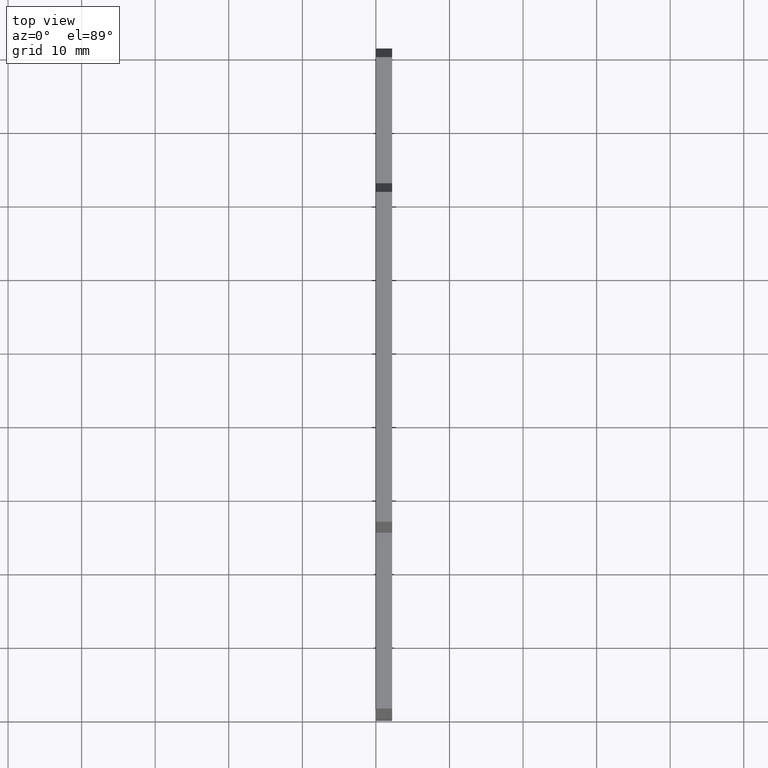
[diagram: clean part render]
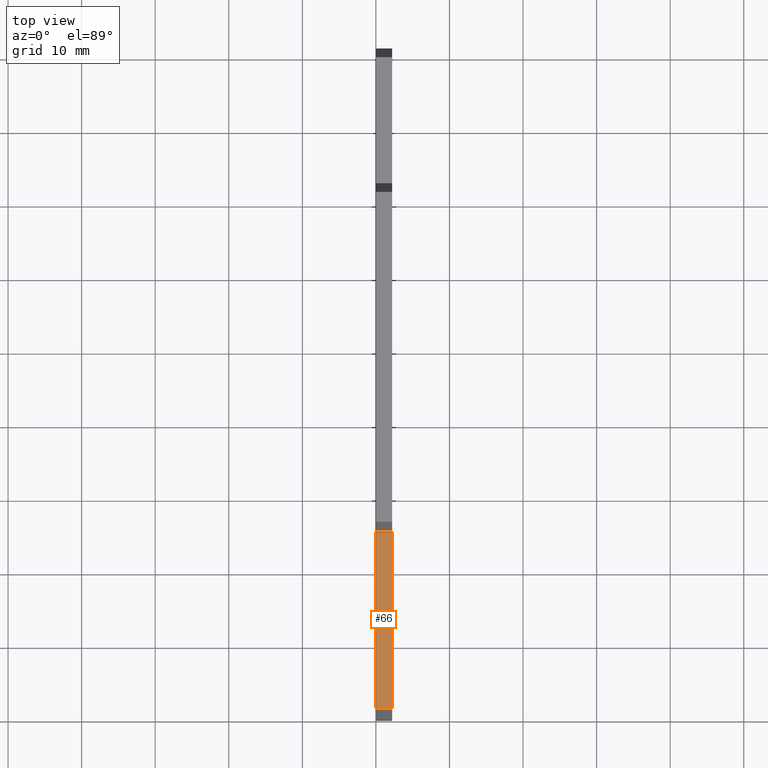
[diagram: same view with one face highlighted and labeled with its STEP entity id]
A machine part, top view. The second image highlights one B-rep face of the part: STEP entity #66.
In plain terms, the highlighted planar face has unit normal (0, -0, 1).
Its self-contained STEP definition (entity closure, byte-faithful):
#66=ADVANCED_FACE('',(#139),#140,.T.);
#139=FACE_OUTER_BOUND('',#216,.T.);
#140=PLANE('',#217);
#216=EDGE_LOOP('',(#332,#333,#334,#335));
#217=AXIS2_PLACEMENT_3D('',#336,#337,#338);
#332=ORIENTED_EDGE('',*,*,#512,.F.);
#333=ORIENTED_EDGE('',*,*,#518,.T.);
#334=ORIENTED_EDGE('',*,*,#519,.F.);
#335=ORIENTED_EDGE('',*,*,#520,.F.);
#336=CARTESIAN_POINT('',(0.0,1.7155528290119,29.0500000000041));
#337=DIRECTION('',(2.46511851528901E-018,-4.85722573273506E-017,1.0));
#338=DIRECTION('',(-5.88252602212242E-013,1.0,4.85722573273521E-017));
#512=EDGE_CURVE('',#619,#617,#621,.T.);
#518=EDGE_CURVE('',#619,#629,#630,.T.);
#519=EDGE_CURVE('',#631,#629,#632,.T.);
#520=EDGE_CURVE('',#617,#631,#633,.T.);
#617=VERTEX_POINT('',#764);
#619=VERTEX_POINT('',#767);
#621=LINE('',#770,#771);
#629=VERTEX_POINT('',#782);
#630=LINE('',#783,#784);
#631=VERTEX_POINT('',#785);
#632=LINE('',#786,#787);
#633=LINE('',#788,#789);
#764=CARTESIAN_POINT('',(0.0,1.296003013423,29.0500000000043));
#767=CARTESIAN_POINT('',(2.2,1.296003013423,29.0500000000043));
#770=CARTESIAN_POINT('',(-48.52,1.296003013423,29.0500000000043));
#771=VECTOR('',#916,1.0);
#782=CARTESIAN_POINT('',(2.2,25.1999994304793,29.0499999999902));
#783=CARTESIAN_POINT('',(2.2,61.6211162538102,29.0499999999688));
#784=VECTOR('',#920,1.0);
#785=CARTESIAN_POINT('',(0.0,25.1999994304793,29.0499999999902));
#786=CARTESIAN_POINT('',(-48.52,25.1999994304793,29.0499999999902));
#787=VECTOR('',#921,1.0);
#788=CARTESIAN_POINT('',(0.0,61.6211162538102,29.0499999999688));
#789=VECTOR('',#922,1.0);
#916=DIRECTION('',(-1.0,-4.7037256739877E-017,2.46511816930322E-018));
#920=DIRECTION('',(-4.70372567398784E-017,1.0,-5.88156992698175E-013));
#921=DIRECTION('',(1.0,4.7037256739877E-017,-2.46511816930322E-018));
#922=DIRECTION('',(-4.70372567398784E-017,1.0,-5.88156992698175E-013));